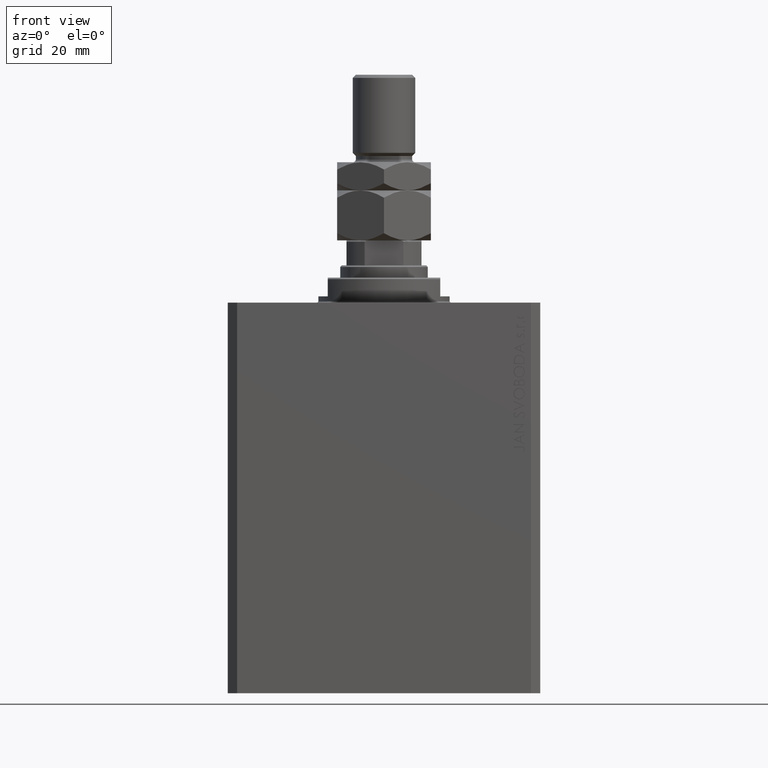
[diagram: clean part render]
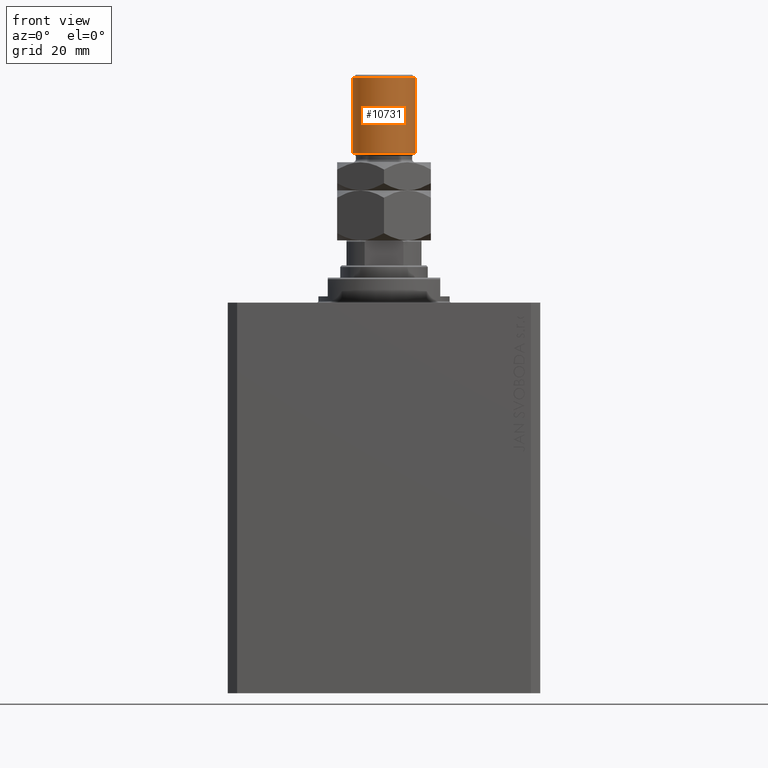
[diagram: same view with one face highlighted and labeled with its STEP entity id]
A machine part, front view. The second image highlights one B-rep face of the part: STEP entity #10731.
In plain terms, the highlighted cylindrical surface (edge-blend (fillet) strip) has radius 10 mm, axis along (-0, -0, -1).
Its self-contained STEP definition (entity closure, byte-faithful):
#1512 = VERTEX_POINT ( 'NONE', #25639 ) ;
#4906 = VERTEX_POINT ( 'NONE', #8957 ) ;
#6116 = EDGE_CURVE ( 'NONE', #1512, #41125, #23592, .T. ) ;
#6680 = AXIS2_PLACEMENT_3D ( 'NONE', #19398, #29677, #25956 ) ;
#8957 = CARTESIAN_POINT ( 'NONE',  ( -10.00000000000000000, 0.000000000000000000, 28.00000000000002487 ) ) ;
#9883 = DIRECTION ( 'NONE',  ( -0.000000000000000000, -0.000000000000000000, -1.000000000000000000 ) ) ;
#10069 = CARTESIAN_POINT ( 'NONE',  ( -10.00000000000000000, 0.000000000000000000, 52.00000000000004974 ) ) ;
#10195 = CARTESIAN_POINT ( 'NONE',  ( 10.00000000000000000, 1.224646799147353059E-15, 28.00000000000002487 ) ) ;
#10731 = ADVANCED_FACE ( 'NONE', ( #31597 ), #16450, .T. ) ;
#11267 = EDGE_CURVE ( 'NONE', #4906, #41125, #37213, .T. ) ;
#12951 = CIRCLE ( 'NONE', #44249, 10.00000000000000000 ) ;
#13227 = VECTOR ( 'NONE', #41082, 1000.000000000000000 ) ;
#13982 = EDGE_LOOP ( 'NONE', ( #42415, #25387, #16242, #27711 ) ) ;
#15134 = DIRECTION ( 'NONE',  ( -0.000000000000000000, -0.000000000000000000, -1.000000000000000000 ) ) ;
#15364 = CARTESIAN_POINT ( 'NONE',  ( -10.00000000000000000, 0.000000000000000000, 53.00000000000000711 ) ) ;
#16242 = ORIENTED_EDGE ( 'NONE', *, *, #26158, .T. ) ;
#16450 = CYLINDRICAL_SURFACE ( 'NONE', #32035, 10.00000000000000000 ) ;
#16588 = CARTESIAN_POINT ( 'NONE',  ( 10.00000000000000000, 1.224646799147353059E-15, 53.00000000000000711 ) ) ;
#18887 = LINE ( 'NONE', #15364, #19012 ) ;
#19012 = VECTOR ( 'NONE', #15134, 1000.000000000000000 ) ;
#19398 = CARTESIAN_POINT ( 'NONE',  ( 0.000000000000000000, 0.000000000000000000, 28.00000000000002487 ) ) ;
#20866 = CARTESIAN_POINT ( 'NONE',  ( 0.000000000000000000, 0.000000000000000000, 53.00000000000000711 ) ) ;
#23592 = LINE ( 'NONE', #16588, #13227 ) ;
#24215 = CARTESIAN_POINT ( 'NONE',  ( 0.000000000000000000, 0.000000000000000000, 52.00000000000004974 ) ) ;
#25387 = ORIENTED_EDGE ( 'NONE', *, *, #31911, .T. ) ;
#25639 = CARTESIAN_POINT ( 'NONE',  ( 10.00000000000000000, 1.224646799147353059E-15, 52.00000000000004974 ) ) ;
#25956 = DIRECTION ( 'NONE',  ( 1.000000000000000000, 0.000000000000000000, 0.000000000000000000 ) ) ;
#26158 = EDGE_CURVE ( 'NONE', #30496, #4906, #18887, .T. ) ;
#27711 = ORIENTED_EDGE ( 'NONE', *, *, #11267, .T. ) ;
#27732 = DIRECTION ( 'NONE',  ( 0.000000000000000000, 0.000000000000000000, -1.000000000000000000 ) ) ;
#29677 = DIRECTION ( 'NONE',  ( -0.000000000000000000, -0.000000000000000000, 1.000000000000000000 ) ) ;
#30496 = VERTEX_POINT ( 'NONE', #10069 ) ;
#31597 = FACE_OUTER_BOUND ( 'NONE', #13982, .T. ) ;
#31911 = EDGE_CURVE ( 'NONE', #1512, #30496, #12951, .T. ) ;
#32035 = AXIS2_PLACEMENT_3D ( 'NONE', #20866, #9883, #35066 ) ;
#34242 = DIRECTION ( 'NONE',  ( 1.000000000000000000, 0.000000000000000000, 0.000000000000000000 ) ) ;
#35066 = DIRECTION ( 'NONE',  ( -1.000000000000000000, 0.000000000000000000, 0.000000000000000000 ) ) ;
#37213 = CIRCLE ( 'NONE', #6680, 10.00000000000000000 ) ;
#41082 = DIRECTION ( 'NONE',  ( -0.000000000000000000, -0.000000000000000000, -1.000000000000000000 ) ) ;
#41125 = VERTEX_POINT ( 'NONE', #10195 ) ;
#42415 = ORIENTED_EDGE ( 'NONE', *, *, #6116, .F. ) ;
#44249 = AXIS2_PLACEMENT_3D ( 'NONE', #24215, #27732, #34242 ) ;